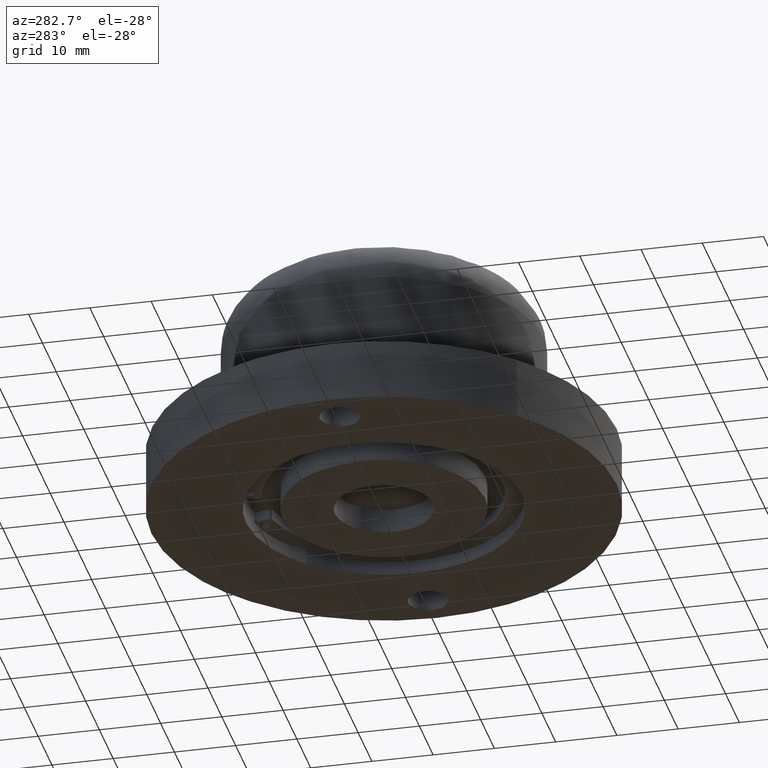
[diagram: clean part render]
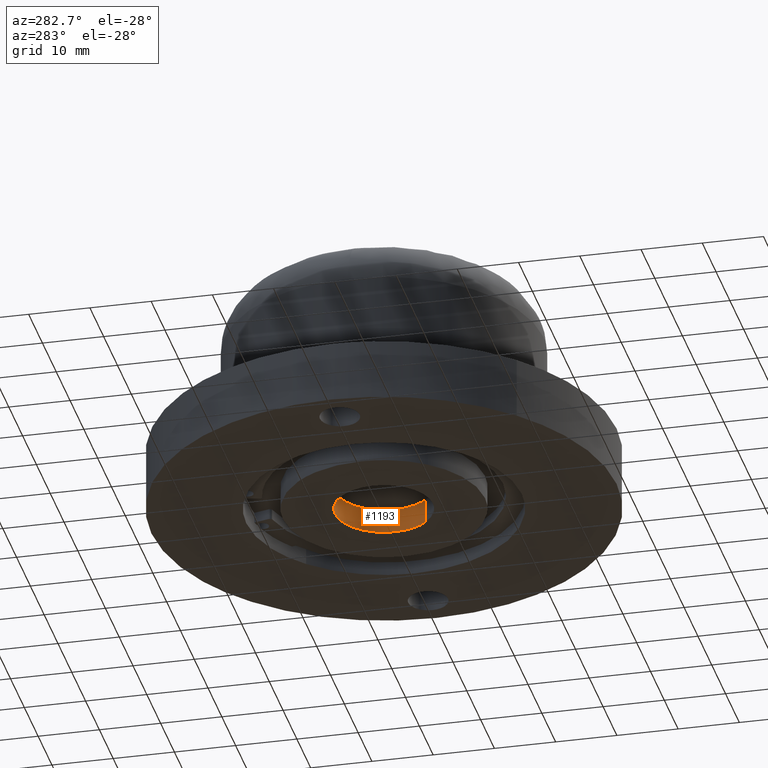
[diagram: same view with one face highlighted and labeled with its STEP entity id]
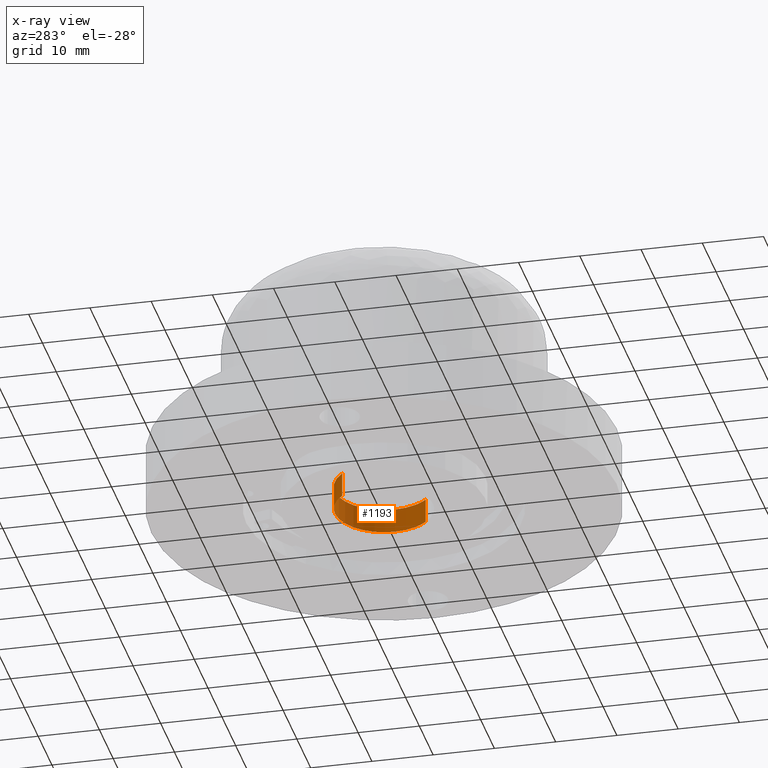
[diagram: x-ray of the same camera — body ghosted, the highlighted face saturated]
A machine part, auxiliary view. The second image highlights one B-rep face of the part: STEP entity #1193.
The next image is the same camera in x-ray: the body ghosted, the highlighted face saturated — about 0% of this face is hidden behind the body in this view.
In plain terms, the highlighted face is a freeform B-spline surface patch.
Its self-contained STEP definition (entity closure, byte-faithful):
#971=CARTESIAN_POINT('',(8.0,0.0,4.0));
#972=VERTEX_POINT('',#971);
#973=CARTESIAN_POINT('',(5.802994763858629,-5.506836414269235,3.999999999999981));
#974=VERTEX_POINT('',#973);
#975=CARTESIAN_POINT('',(8.0,0.0,4.0));
#976=CARTESIAN_POINT('',(8.000045752743397,-0.474513808928688,3.999999999999988));
#977=CARTESIAN_POINT('',(7.923758713442455,-1.328611046409726,4.000000000000014));
#978=CARTESIAN_POINT('',(7.556400393194855,-2.773235832088802,3.999999999999974));
#979=CARTESIAN_POINT('',(6.892991900709697,-4.186222813384710,3.999999999999996));
#980=CARTESIAN_POINT('',(6.173219601041714,-5.116784758738971,3.999999999999967));
#981=CARTESIAN_POINT('',(5.802994763858629,-5.506836414269235,3.999999999999981));
#982=B_SPLINE_CURVE_WITH_KNOTS('',3,(#975,#976,#977,#978,#979,#980,#981),.UNSPECIFIED.,.F.,.U.,(4,1,1,1,4),(0.000000019633764,1.423541920198024,2.562380339160413,4.460432562626767,6.073781304491241),.UNSPECIFIED.);
#983=EDGE_CURVE('',#972,#974,#982,.T.);
#1014=CARTESIAN_POINT('',(-5.802994763858592,5.506836414269200,3.999999999999981));
#1015=VERTEX_POINT('',#1014);
#1025=CARTESIAN_POINT('',(0.000001120813142,7.999999999999921,4.0));
#1026=VERTEX_POINT('',#1025);
#1027=CARTESIAN_POINT('',(-5.802994763858592,5.506836414269200,3.999999999999981));
#1028=CARTESIAN_POINT('',(-5.430606671128801,5.899353969788238,3.999999999999990));
#1029=CARTESIAN_POINT('',(-4.631549345500995,6.586210484845133,3.999999999999977));
#1030=CARTESIAN_POINT('',(-3.329739516481511,7.320524388223556,3.999999999999991));
#1031=CARTESIAN_POINT('',(-1.792144933959400,7.857603299536436,3.999999999999998));
#1032=CARTESIAN_POINT('',(-0.676336457777480,8.000181213438179,3.999999999999993));
#1033=CARTESIAN_POINT('',(0.000001120813142,7.999999999999921,4.0));
#1034=B_SPLINE_CURVE_WITH_KNOTS('',3,(#1027,#1028,#1029,#1030,#1031,#1032,#1033),.UNSPECIFIED.,.F.,.U.,(4,1,1,1,4),(0.000000017987905,1.623167475743673,3.144894537774019,4.463704783757274,6.492669322275718),.UNSPECIFIED.);
#1035=EDGE_CURVE('',#1015,#1026,#1034,.T.);
#1037=CARTESIAN_POINT('',(0.000001120813142,7.999999999999921,4.0));
#1038=CARTESIAN_POINT('',(0.589045394861144,8.000072979532922,4.000000000000010));
#1039=CARTESIAN_POINT('',(1.832608443781341,7.862156762117805,4.0));
#1040=CARTESIAN_POINT('',(3.477928247380602,7.273398438738017,3.999999999999984));
#1041=CARTESIAN_POINT('',(4.955193716753898,6.350557056941018,4.000000000000020));
#1042=CARTESIAN_POINT('',(6.004372095027427,5.351619375036901,3.999999999999989));
#1043=CARTESIAN_POINT('',(6.856913796199451,4.187153645167578,4.000000000000007));
#1044=CARTESIAN_POINT('',(7.410286691263541,3.104413331580159,3.999999999999996));
#1045=CARTESIAN_POINT('',(7.874754431983667,1.668884964862204,3.999999999999994));
#1046=CARTESIAN_POINT('',(8.000182232303855,0.654516656917679,4.000000000000013));
#1047=CARTESIAN_POINT('',(8.0,0.0,4.0));
#1048=B_SPLINE_CURVE_WITH_KNOTS('',3,(#1037,#1038,#1039,#1040,#1041,#1042,#1043,#1044,#1045,#1046,#1047),.UNSPECIFIED.,.F.,.U.,(4,1,1,1,1,1,1,1,4),(0.000000073297798,1.767152052744439,3.730672474211419,5.203317042652846,6.970439969709427,8.050379061752532,9.523013420981553,10.602956100367701,12.566448831289820),.UNSPECIFIED.);
#1049=EDGE_CURVE('',#1026,#972,#1048,.T.);
#1073=CARTESIAN_POINT('',(5.802994763858694,-5.506836414269168,-2.081668E-016));
#1074=VERTEX_POINT('',#1073);
#1075=CARTESIAN_POINT('',(5.802994763858629,-5.506836414269235,3.999999999999981));
#1076=CARTESIAN_POINT('',(5.802994763858694,-5.506836414269168,-2.081668E-016));
#1077=QUASI_UNIFORM_CURVE('',1,(#1075,#1076),.UNSPECIFIED.,.F.,.U.);
#1078=EDGE_CURVE('',#974,#1074,#1077,.T.);
#1109=CARTESIAN_POINT('',(-5.802994763858656,5.506836414269134,-4.440892E-016));
#1110=VERTEX_POINT('',#1109);
#1120=CARTESIAN_POINT('',(-5.802994763858592,5.506836414269200,3.999999999999981));
#1121=CARTESIAN_POINT('',(-5.802994763858656,5.506836414269134,-4.440892E-016));
#1122=QUASI_UNIFORM_CURVE('',1,(#1120,#1121),.UNSPECIFIED.,.F.,.U.);
#1123=EDGE_CURVE('',#1015,#1110,#1122,.T.);
#1130=CARTESIAN_POINT('',(-5.802994968098299,5.506836605550030,4.100000000000000));
#1131=CARTESIAN_POINT('',(-0.296158362548269,11.309831573648330,4.100000000000000));
#1132=CARTESIAN_POINT('',(5.506836605550030,5.802994968098299,4.100000000000000));
#1133=CARTESIAN_POINT('',(11.309831573648330,0.296158362548269,4.100000000000000));
#1134=CARTESIAN_POINT('',(5.802994968098299,-5.506836605550030,4.100000000000000));
#1135=CARTESIAN_POINT('',(-5.802994968098299,5.506836605550030,-0.102500000000000));
#1136=CARTESIAN_POINT('',(-0.296158362548269,11.309831573648330,-0.102500000000000));
#1137=CARTESIAN_POINT('',(5.506836605550030,5.802994968098299,-0.102500000000000));
#1138=CARTESIAN_POINT('',(11.309831573648330,0.296158362548269,-0.102500000000000));
#1139=CARTESIAN_POINT('',(5.802994968098299,-5.506836605550030,-0.102500000000000));
#1147=(BOUNDED_SURFACE()B_SPLINE_SURFACE(2,1,((#1130,#1135),(#1131,#1136),(#1132,#1137),(#1133,#1138),(#1134,#1139)),.UNSPECIFIED.,.F.,.F.,.U.)B_SPLINE_SURFACE_WITH_KNOTS((3,2,3),(2,2),(0.0,13.254833995939039,26.509667991878079),(0.0,4.202500000000000),.UNSPECIFIED.)GEOMETRIC_REPRESENTATION_ITEM()RATIONAL_B_SPLINE_SURFACE(((1.0,1.0),(0.707106781186548,0.707106781186548),(1.0,1.0),(0.707106781186548,0.707106781186548),(1.0,1.0)))REPRESENTATION_ITEM('')SURFACE());
#1148=ORIENTED_EDGE('',*,*,#983,.F.);
#1149=ORIENTED_EDGE('',*,*,#1049,.F.);
#1150=ORIENTED_EDGE('',*,*,#1035,.F.);
#1151=ORIENTED_EDGE('',*,*,#1123,.T.);
#1152=CARTESIAN_POINT('',(0.000001120813142,7.999999999999921,0.0));
#1153=VERTEX_POINT('',#1152);
#1154=CARTESIAN_POINT('',(-5.802994763858656,5.506836414269134,-4.440892E-016));
#1155=CARTESIAN_POINT('',(-5.314335291317921,6.022151141641355,-4.066933E-016));
#1156=CARTESIAN_POINT('',(-4.543835944024838,6.642725640330880,-3.477288E-016));
#1157=CARTESIAN_POINT('',(-3.292105289087571,7.317660380577911,-2.519369E-016));
#1158=CARTESIAN_POINT('',(-1.927368821380757,7.833680272082293,-1.474970E-016));
#1159=CARTESIAN_POINT('',(-0.743980077968049,8.000273159195038,-5.693508E-017));
#1160=CARTESIAN_POINT('',(0.000001120813142,7.999999999999921,0.0));
#1161=B_SPLINE_CURVE_WITH_KNOTS('',3,(#1154,#1155,#1156,#1157,#1158,#1159,#1160),.UNSPECIFIED.,.F.,.U.,(4,1,1,1,4),(0.000000017987620,2.130412642925587,2.942006078292643,4.260808269338439,6.492669322275821),.UNSPECIFIED.);
#1162=EDGE_CURVE('',#1110,#1153,#1161,.T.);
#1163=ORIENTED_EDGE('',*,*,#1162,.T.);
#1164=CARTESIAN_POINT('',(8.0,0.0,0.0));
#1165=VERTEX_POINT('',#1164);
#1166=CARTESIAN_POINT('',(0.000001120813142,7.999999999999921,0.0));
#1167=CARTESIAN_POINT('',(0.818176469989046,8.000439686326098,0.0));
#1168=CARTESIAN_POINT('',(2.192360799042789,7.787224052464321,0.0));
#1169=CARTESIAN_POINT('',(3.790907814180874,7.090231429600552,0.0));
#1170=CARTESIAN_POINT('',(5.050567529991734,6.259722355668565,0.0));
#1171=CARTESIAN_POINT('',(6.004373151268895,5.351626650029918,0.0));
#1172=CARTESIAN_POINT('',(6.856913619966375,4.187152646346548,0.0));
#1173=CARTESIAN_POINT('',(7.410286704168212,3.104413305125249,0.0));
#1174=CARTESIAN_POINT('',(7.874754425690004,1.668884977765833,0.0));
#1175=CARTESIAN_POINT('',(8.000182234277526,0.654516652870174,0.0));
#1176=CARTESIAN_POINT('',(8.0,0.0,0.0));
#1177=B_SPLINE_CURVE_WITH_KNOTS('',3,(#1166,#1167,#1168,#1169,#1170,#1171,#1172,#1173,#1174,#1175,#1176),.UNSPECIFIED.,.F.,.U.,(4,1,1,1,1,1,1,1,4),(0.000000073297798,2.454376282422878,4.123378835730971,5.203317042652846,6.970439969709427,8.050379061752532,9.523013420981553,10.602956100367701,12.566448831289820),.UNSPECIFIED.);
#1178=EDGE_CURVE('',#1153,#1165,#1177,.T.);
#1179=ORIENTED_EDGE('',*,*,#1178,.T.);
#1180=CARTESIAN_POINT('',(8.0,0.0,0.0));
#1181=CARTESIAN_POINT('',(8.000047548922282,-0.474514048540421,-1.793735E-017));
#1182=CARTESIAN_POINT('',(7.923772627067790,-1.328617729615826,-5.022378E-017));
#1183=CARTESIAN_POINT('',(7.587582978626484,-2.650249625229002,-1.001835E-016));
#1184=CARTESIAN_POINT('',(6.959548145850971,-4.075034532896357,-1.540425E-016));
#1185=CARTESIAN_POINT('',(6.260415169862796,-5.025068347729266,-1.899552E-016));
#1186=CARTESIAN_POINT('',(5.802994763858694,-5.506836414269168,-2.081668E-016));
#1187=B_SPLINE_CURVE_WITH_KNOTS('',3,(#1180,#1181,#1182,#1183,#1184,#1185,#1186),.UNSPECIFIED.,.F.,.U.,(4,1,1,1,4),(0.000000019633403,1.423541920197769,2.562380339160244,4.080820465573837,6.073781304491142),.UNSPECIFIED.);
#1188=EDGE_CURVE('',#1165,#1074,#1187,.T.);
#1189=ORIENTED_EDGE('',*,*,#1188,.T.);
#1190=ORIENTED_EDGE('',*,*,#1078,.F.);
#1191=EDGE_LOOP('',(#1148,#1149,#1150,#1151,#1163,#1179,#1189,#1190));
#1192=FACE_OUTER_BOUND('',#1191,.T.);
#1193=ADVANCED_FACE('',(#1192),#1147,.F.);